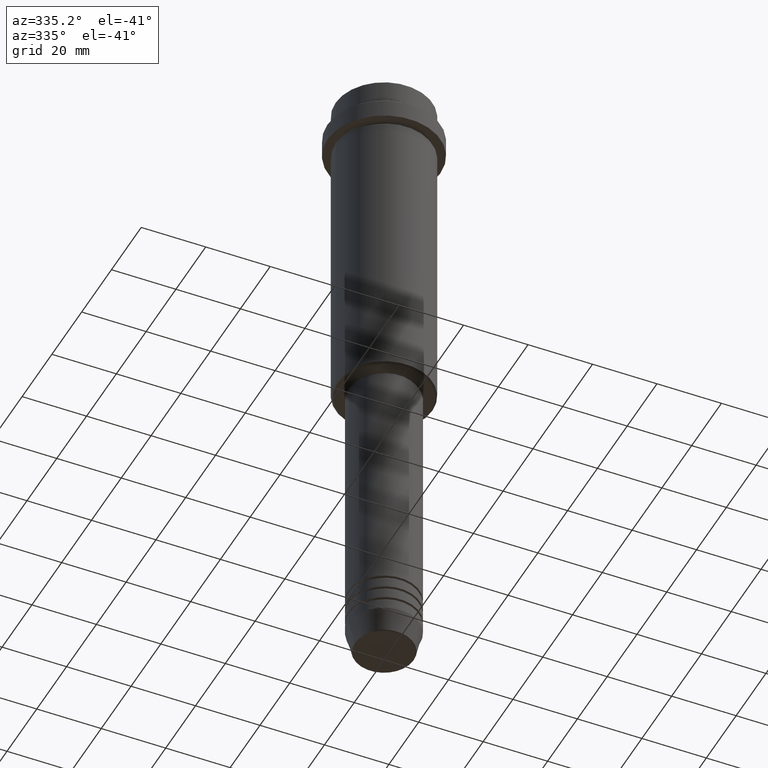
[diagram: clean part render]
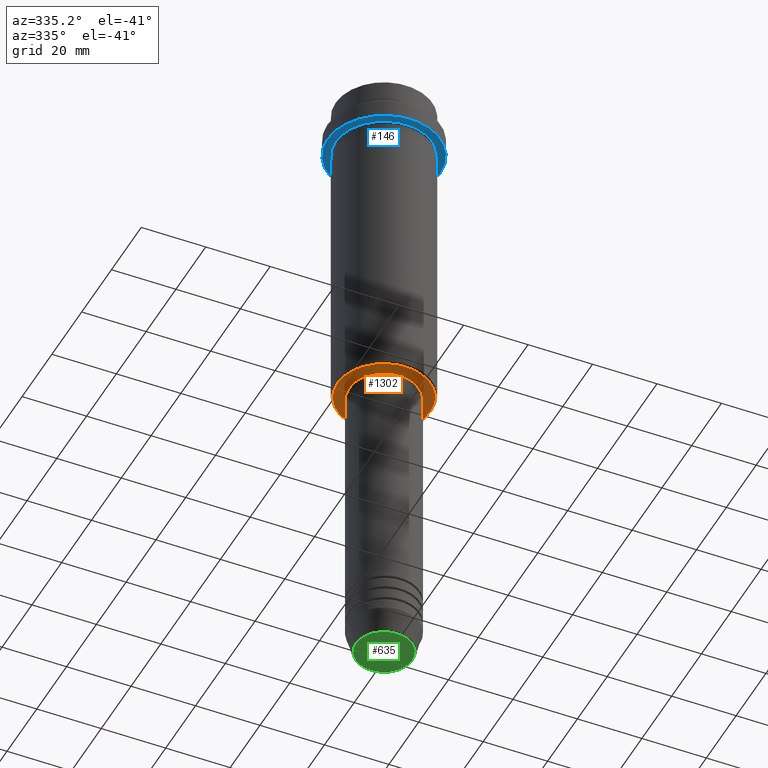
[diagram: same view with three faces highlighted in distinct colors, each labeled with its STEP entity id]
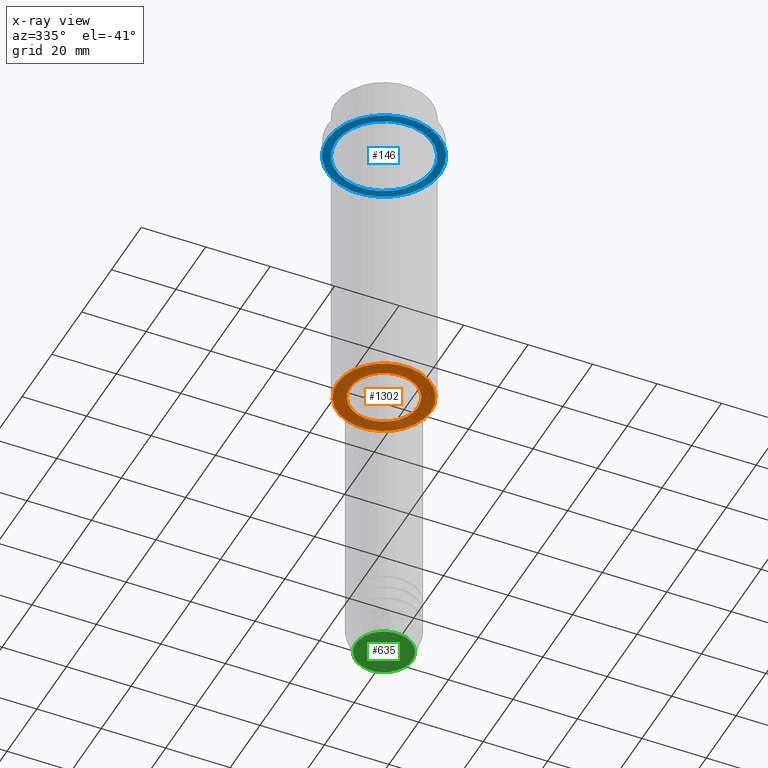
[diagram: x-ray of the same camera — body ghosted, the three highlighted faces saturated]
A machine part, auxiliary view with three faces highlighted in distinct colors.
The next image is the same camera in x-ray (body ghosted, the three faces saturated) — at least one of them is partly hidden behind the body in this view.
Their STEP definitions:

[orange] entity #1302 — the highlighted planar face has unit normal (0, 0, -1).
#13 = FACE_OUTER_BOUND ( 'NONE', #1195, .T. ) ;
#32 = DIRECTION ( 'NONE',  ( -1.000000000000000000, 0.000000000000000000, 0.000000000000000000 ) ) ;
#77 = VERTEX_POINT ( 'NONE', #1312 ) ;
#99 = EDGE_CURVE ( 'NONE', #1248, #925, #1303, .T. ) ;
#119 = VERTEX_POINT ( 'NONE', #1108 ) ;
#132 = DIRECTION ( 'NONE',  ( -0.000000000000000000, -0.000000000000000000, 1.000000000000000000 ) ) ;
#179 = CIRCLE ( 'NONE', #363, 10.49999999999999289 ) ;
#204 = CIRCLE ( 'NONE', #299, 10.49999999999999289 ) ;
#207 = EDGE_LOOP ( 'NONE', ( #240, #873 ) ) ;
#240 = ORIENTED_EDGE ( 'NONE', *, *, #967, .T. ) ;
#299 = AXIS2_PLACEMENT_3D ( 'NONE', #668, #132, #996 ) ;
#363 = AXIS2_PLACEMENT_3D ( 'NONE', #876, #1087, #1382 ) ;
#396 = ORIENTED_EDGE ( 'NONE', *, *, #99, .T. ) ;
#423 = EDGE_CURVE ( 'NONE', #925, #1248, #527, .T. ) ;
#431 = DIRECTION ( 'NONE',  ( 0.000000000000000000, 0.000000000000000000, -1.000000000000000000 ) ) ;
#445 = DIRECTION ( 'NONE',  ( -1.000000000000000000, 0.000000000000000000, 0.000000000000000000 ) ) ;
#483 = AXIS2_PLACEMENT_3D ( 'NONE', #543, #431, #879 ) ;
#527 = CIRCLE ( 'NONE', #1324, 14.50000000000001066 ) ;
#540 = DIRECTION ( 'NONE',  ( 0.000000000000000000, 0.000000000000000000, -1.000000000000000000 ) ) ;
#543 = CARTESIAN_POINT ( 'NONE',  ( 0.000000000000000000, 15.00000000000000000, -105.0000000000000142 ) ) ;
#662 = CARTESIAN_POINT ( 'NONE',  ( 0.000000000000000000, 0.000000000000000000, -105.0000000000000142 ) ) ;
#668 = CARTESIAN_POINT ( 'NONE',  ( 0.000000000000000000, 0.000000000000000000, -105.0000000000000142 ) ) ;
#794 = EDGE_CURVE ( 'NONE', #119, #77, #179, .T. ) ;
#873 = ORIENTED_EDGE ( 'NONE', *, *, #794, .T. ) ;
#876 = CARTESIAN_POINT ( 'NONE',  ( 0.000000000000000000, 0.000000000000000000, -105.0000000000000142 ) ) ;
#879 = DIRECTION ( 'NONE',  ( -1.000000000000000000, 0.000000000000000000, -0.000000000000000000 ) ) ;
#925 = VERTEX_POINT ( 'NONE', #1414 ) ;
#967 = EDGE_CURVE ( 'NONE', #77, #119, #204, .T. ) ;
#993 = CARTESIAN_POINT ( 'NONE',  ( 14.50000000000001066, 0.000000000000000000, -105.0000000000000142 ) ) ;
#996 = DIRECTION ( 'NONE',  ( 1.000000000000000000, 0.000000000000000000, 0.000000000000000000 ) ) ;
#1087 = DIRECTION ( 'NONE',  ( -0.000000000000000000, -0.000000000000000000, 1.000000000000000000 ) ) ;
#1100 = CARTESIAN_POINT ( 'NONE',  ( 0.000000000000000000, 0.000000000000000000, -105.0000000000000142 ) ) ;
#1108 = CARTESIAN_POINT ( 'NONE',  ( -10.49999999999999289, 1.285879139104720042E-15, -105.0000000000000142 ) ) ;
#1185 = FACE_BOUND ( 'NONE', #207, .T. ) ;
#1195 = EDGE_LOOP ( 'NONE', ( #396, #1384 ) ) ;
#1209 = PLANE ( 'NONE',  #483 ) ;
#1217 = DIRECTION ( 'NONE',  ( 0.000000000000000000, 0.000000000000000000, -1.000000000000000000 ) ) ;
#1248 = VERTEX_POINT ( 'NONE', #993 ) ;
#1302 = ADVANCED_FACE ( 'NONE', ( #13, #1185 ), #1209, .T. ) ;
#1303 = CIRCLE ( 'NONE', #1411, 14.50000000000001066 ) ;
#1312 = CARTESIAN_POINT ( 'NONE',  ( 10.49999999999999289, 0.000000000000000000, -105.0000000000000142 ) ) ;
#1324 = AXIS2_PLACEMENT_3D ( 'NONE', #1100, #540, #445 ) ;
#1382 = DIRECTION ( 'NONE',  ( 1.000000000000000000, 0.000000000000000000, 0.000000000000000000 ) ) ;
#1384 = ORIENTED_EDGE ( 'NONE', *, *, #423, .T. ) ;
#1411 = AXIS2_PLACEMENT_3D ( 'NONE', #662, #1217, #32 ) ;
#1414 = CARTESIAN_POINT ( 'NONE',  ( -14.50000000000001066, 1.806354028742346591E-15, -105.0000000000000142 ) ) ;

[blue] entity #146 — the highlighted planar face has unit normal (0, 0, -1).
#9 = EDGE_LOOP ( 'NONE', ( #643, #29 ) ) ;
#29 = ORIENTED_EDGE ( 'NONE', *, *, #995, .F. ) ;
#51 = EDGE_CURVE ( 'NONE', #426, #199, #133, .T. ) ;
#85 = AXIS2_PLACEMENT_3D ( 'NONE', #342, #1316, #1340 ) ;
#133 = CIRCLE ( 'NONE', #524, 17.50000000000000000 ) ;
#136 = AXIS2_PLACEMENT_3D ( 'NONE', #945, #1378, #811 ) ;
#146 = ADVANCED_FACE ( 'NONE', ( #1240, #352 ), #998, .T. ) ;
#199 = VERTEX_POINT ( 'NONE', #1352 ) ;
#219 = DIRECTION ( 'NONE',  ( -0.000000000000000000, -0.000000000000000000, 1.000000000000000000 ) ) ;
#310 = EDGE_CURVE ( 'NONE', #556, #311, #1167, .T. ) ;
#311 = VERTEX_POINT ( 'NONE', #1276 ) ;
#342 = CARTESIAN_POINT ( 'NONE',  ( 0.000000000000000000, 0.000000000000000000, -15.00000000000000000 ) ) ;
#345 = CIRCLE ( 'NONE', #1140, 14.99999999999999467 ) ;
#352 = FACE_OUTER_BOUND ( 'NONE', #9, .T. ) ;
#426 = VERTEX_POINT ( 'NONE', #1398 ) ;
#452 = CARTESIAN_POINT ( 'NONE',  ( 0.000000000000000000, 0.000000000000000000, -15.00000000000000000 ) ) ;
#486 = DIRECTION ( 'NONE',  ( -1.000000000000000000, 0.000000000000000000, -0.000000000000000000 ) ) ;
#515 = ORIENTED_EDGE ( 'NONE', *, *, #310, .T. ) ;
#524 = AXIS2_PLACEMENT_3D ( 'NONE', #452, #219, #857 ) ;
#556 = VERTEX_POINT ( 'NONE', #909 ) ;
#567 = DIRECTION ( 'NONE',  ( -1.000000000000000000, 0.000000000000000000, 0.000000000000000000 ) ) ;
#590 = CIRCLE ( 'NONE', #85, 17.50000000000000000 ) ;
#643 = ORIENTED_EDGE ( 'NONE', *, *, #51, .F. ) ;
#670 = CARTESIAN_POINT ( 'NONE',  ( 0.000000000000000000, 17.50000000000000000, -15.00000000000000000 ) ) ;
#671 = EDGE_LOOP ( 'NONE', ( #862, #515 ) ) ;
#674 = DIRECTION ( 'NONE',  ( -0.000000000000000000, -0.000000000000000000, 1.000000000000000000 ) ) ;
#726 = AXIS2_PLACEMENT_3D ( 'NONE', #670, #900, #486 ) ;
#811 = DIRECTION ( 'NONE',  ( -1.000000000000000000, 0.000000000000000000, 0.000000000000000000 ) ) ;
#857 = DIRECTION ( 'NONE',  ( 1.000000000000000000, 0.000000000000000000, 0.000000000000000000 ) ) ;
#862 = ORIENTED_EDGE ( 'NONE', *, *, #1032, .T. ) ;
#900 = DIRECTION ( 'NONE',  ( 0.000000000000000000, 0.000000000000000000, -1.000000000000000000 ) ) ;
#909 = CARTESIAN_POINT ( 'NONE',  ( 14.99999999999999467, 1.836970198721029194E-15, -15.00000000000000000 ) ) ;
#945 = CARTESIAN_POINT ( 'NONE',  ( 0.000000000000000000, 0.000000000000000000, -15.00000000000000000 ) ) ;
#995 = EDGE_CURVE ( 'NONE', #199, #426, #590, .T. ) ;
#998 = PLANE ( 'NONE',  #726 ) ;
#1032 = EDGE_CURVE ( 'NONE', #311, #556, #345, .T. ) ;
#1140 = AXIS2_PLACEMENT_3D ( 'NONE', #1335, #674, #567 ) ;
#1167 = CIRCLE ( 'NONE', #136, 14.99999999999999467 ) ;
#1240 = FACE_BOUND ( 'NONE', #671, .T. ) ;
#1276 = CARTESIAN_POINT ( 'NONE',  ( -14.99999999999999467, 0.000000000000000000, -15.00000000000000000 ) ) ;
#1316 = DIRECTION ( 'NONE',  ( -0.000000000000000000, -0.000000000000000000, 1.000000000000000000 ) ) ;
#1335 = CARTESIAN_POINT ( 'NONE',  ( 0.000000000000000000, 0.000000000000000000, -15.00000000000000000 ) ) ;
#1340 = DIRECTION ( 'NONE',  ( 1.000000000000000000, 0.000000000000000000, 0.000000000000000000 ) ) ;
#1352 = CARTESIAN_POINT ( 'NONE',  ( -17.50000000000000000, 2.143131898507868248E-15, -15.00000000000000000 ) ) ;
#1378 = DIRECTION ( 'NONE',  ( -0.000000000000000000, -0.000000000000000000, 1.000000000000000000 ) ) ;
#1398 = CARTESIAN_POINT ( 'NONE',  ( 17.50000000000000000, 0.000000000000000000, -15.00000000000000000 ) ) ;

[green] entity #635 — the highlighted planar face has unit normal (0, -0, 1).
#11 = DIRECTION ( 'NONE',  ( 0.000000000000000000, -0.000000000000000000, 1.000000000000000000 ) ) ;
#44 = EDGE_CURVE ( 'NONE', #926, #376, #1363, .T. ) ;
#106 = CARTESIAN_POINT ( 'NONE',  ( 0.000000000000000000, 0.000000000000000000, -200.0000000000000000 ) ) ;
#137 = CIRCLE ( 'NONE', #257, 8.740692158992656502 ) ;
#212 = DIRECTION ( 'NONE',  ( 0.000000000000000000, 0.000000000000000000, -1.000000000000000000 ) ) ;
#233 = AXIS2_PLACEMENT_3D ( 'NONE', #1332, #11, #355 ) ;
#236 = FACE_OUTER_BOUND ( 'NONE', #952, .T. ) ;
#257 = AXIS2_PLACEMENT_3D ( 'NONE', #106, #1196, #858 ) ;
#355 = DIRECTION ( 'NONE',  ( 1.000000000000000000, 0.000000000000000000, 0.000000000000000000 ) ) ;
#376 = VERTEX_POINT ( 'NONE', #659 ) ;
#444 = CARTESIAN_POINT ( 'NONE',  ( -8.740692158992656502, 1.099999016768739653E-15, -200.0000000000000000 ) ) ;
#635 = ADVANCED_FACE ( 'NONE', ( #236 ), #805, .F. ) ;
#659 = CARTESIAN_POINT ( 'NONE',  ( 8.740692158992656502, 0.000000000000000000, -200.0000000000000000 ) ) ;
#805 = PLANE ( 'NONE',  #233 ) ;
#858 = DIRECTION ( 'NONE',  ( 1.000000000000000000, 0.000000000000000000, 0.000000000000000000 ) ) ;
#926 = VERTEX_POINT ( 'NONE', #444 ) ;
#952 = EDGE_LOOP ( 'NONE', ( #1210, #1164 ) ) ;
#992 = DIRECTION ( 'NONE',  ( 1.000000000000000000, 0.000000000000000000, 0.000000000000000000 ) ) ;
#1139 = AXIS2_PLACEMENT_3D ( 'NONE', #1318, #212, #992 ) ;
#1164 = ORIENTED_EDGE ( 'NONE', *, *, #44, .T. ) ;
#1196 = DIRECTION ( 'NONE',  ( 0.000000000000000000, 0.000000000000000000, -1.000000000000000000 ) ) ;
#1210 = ORIENTED_EDGE ( 'NONE', *, *, #1246, .T. ) ;
#1246 = EDGE_CURVE ( 'NONE', #376, #926, #137, .T. ) ;
#1318 = CARTESIAN_POINT ( 'NONE',  ( 0.000000000000000000, 0.000000000000000000, -200.0000000000000000 ) ) ;
#1332 = CARTESIAN_POINT ( 'NONE',  ( 0.000000000000000000, 0.000000000000000000, -200.0000000000000000 ) ) ;
#1363 = CIRCLE ( 'NONE', #1139, 8.740692158992656502 ) ;